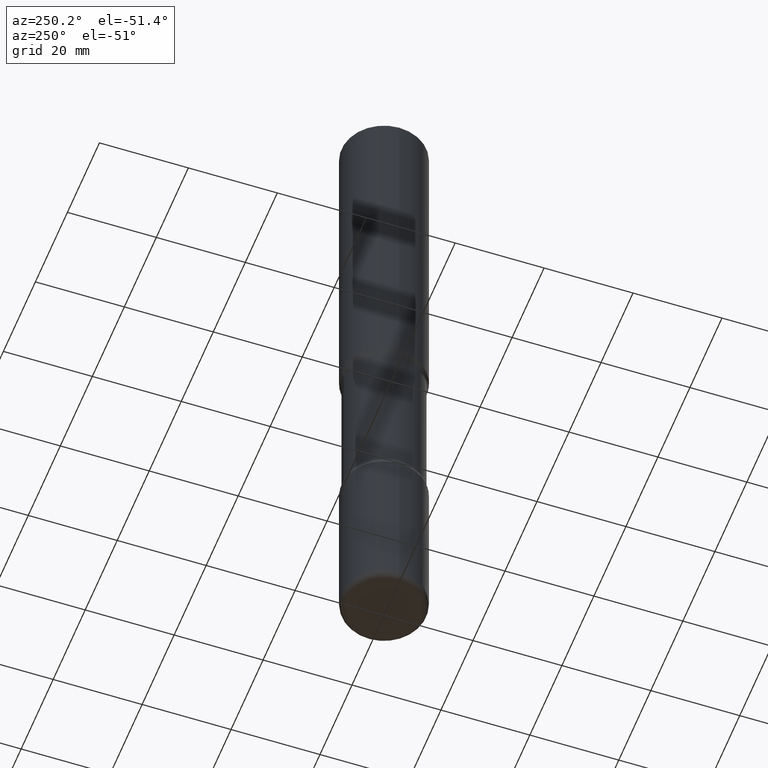
[diagram: clean part render]
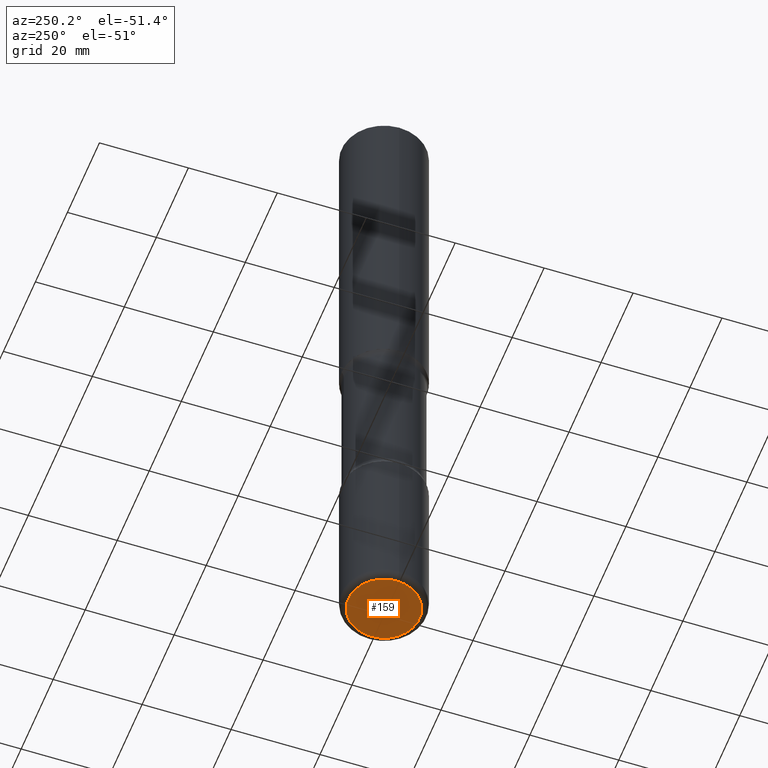
[diagram: same view with one face highlighted and labeled with its STEP entity id]
A machine part, auxiliary view. The second image highlights one B-rep face of the part: STEP entity #159.
In plain terms, the highlighted planar face has unit normal (0, -0, -1).
Its self-contained STEP definition (entity closure, byte-faithful):
#42 = CIRCLE ( 'NONE', #137, 0.3150000000000005573 ) ;
#56 = EDGE_CURVE ( 'NONE', #97, #559, #42, .T. ) ;
#88 = DIRECTION ( 'NONE',  ( 2.438088387897960049E-29, -3.491481338843145188E-15, -1.000000000000000000 ) ) ;
#97 = VERTEX_POINT ( 'NONE', #532 ) ;
#126 = FACE_OUTER_BOUND ( 'NONE', #157, .T. ) ;
#131 = DIRECTION ( 'NONE',  ( 1.000000000000000000, -6.982962677686261977E-15, 0.000000000000000000 ) ) ;
#137 = AXIS2_PLACEMENT_3D ( 'NONE', #289, #344, #213 ) ;
#157 = EDGE_LOOP ( 'NONE', ( #531, #221 ) ) ;
#159 = ADVANCED_FACE ( 'NONE', ( #126 ), #307, .T. ) ;
#176 = DIRECTION ( 'NONE',  ( -1.000000000000000000, 6.982962677686265922E-15, -4.876176775795935793E-29 ) ) ;
#213 = DIRECTION ( 'NONE',  ( 1.000000000000000000, -6.982962677686261977E-15, 0.000000000000000000 ) ) ;
#221 = ORIENTED_EDGE ( 'NONE', *, *, #56, .F. ) ;
#224 = CARTESIAN_POINT ( 'NONE',  ( 1.467281283711081510E-28, -2.094888803305886640E-14, -5.999999999999998224 ) ) ;
#235 = AXIS2_PLACEMENT_3D ( 'NONE', #224, #296, #131 ) ;
#284 = CIRCLE ( 'NONE', #235, 0.3150000000000005573 ) ;
#289 = CARTESIAN_POINT ( 'NONE',  ( 1.467281283711081510E-28, -2.094888803305886640E-14, -5.999999999999998224 ) ) ;
#296 = DIRECTION ( 'NONE',  ( -2.445468806185136597E-29, 3.491481338843145583E-15, 1.000000000000000000 ) ) ;
#307 = PLANE ( 'NONE',  #388 ) ;
#344 = DIRECTION ( 'NONE',  ( -2.445468806185136597E-29, 3.491481338843145583E-15, 1.000000000000000000 ) ) ;
#375 = CARTESIAN_POINT ( 'NONE',  ( 2.920720718444006052E-28, -1.348080813311779196E-16, -5.999999999999999112 ) ) ;
#388 = AXIS2_PLACEMENT_3D ( 'NONE', #375, #88, #176 ) ;
#450 = CARTESIAN_POINT ( 'NONE',  ( 0.3150000000000005573, -2.314852127653004293E-14, -5.999999999999998224 ) ) ;
#452 = EDGE_CURVE ( 'NONE', #559, #97, #284, .T. ) ;
#531 = ORIENTED_EDGE ( 'NONE', *, *, #452, .F. ) ;
#532 = CARTESIAN_POINT ( 'NONE',  ( -0.3150000000000005573, -1.839277115452122915E-14, -5.999999999999998224 ) ) ;
#559 = VERTEX_POINT ( 'NONE', #450 ) ;